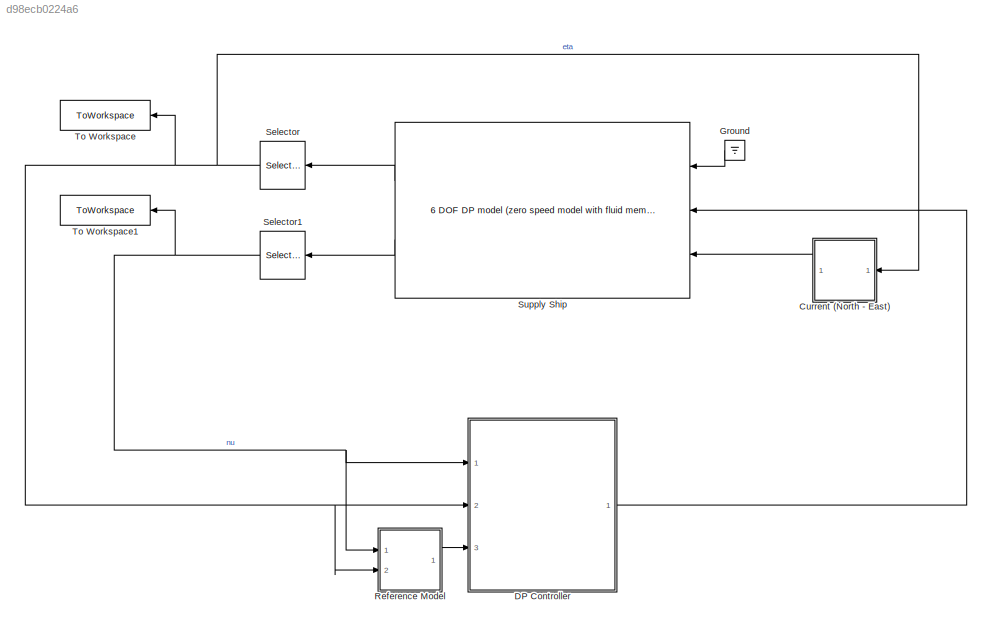
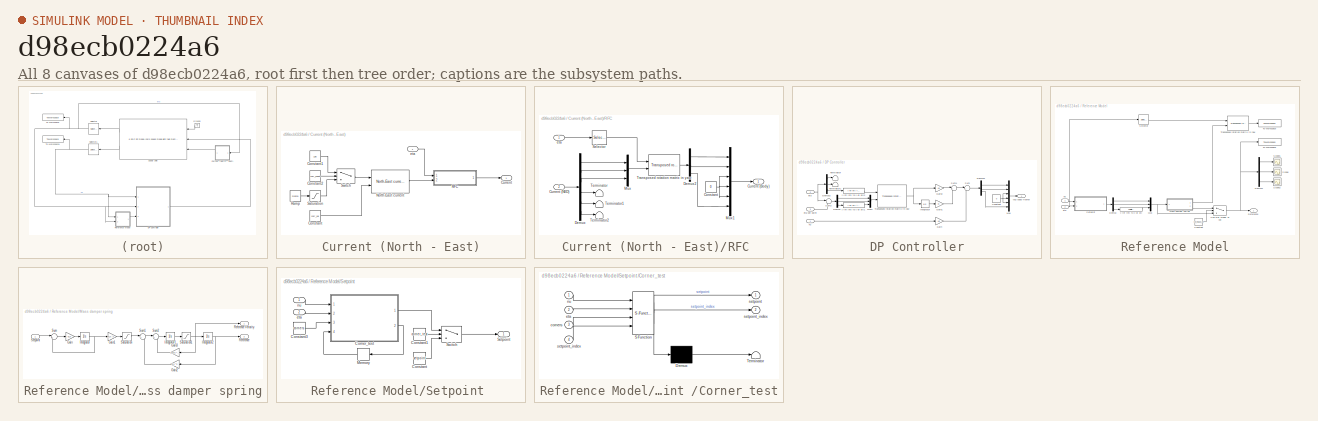
[diagram: thumbnail index - all 8 canvases of the model, root first then tree order]
MODEL slx_d98ecb0224a6
KIND model
CONFIG AbsTol = auto
CONFIG EnableMultiTasking = off
CONFIG FixedStep = auto
CONFIG MaxStep = auto
CONFIG MinStep = auto
CONFIG RelTol = 1e-3
CONFIG SampleTimeConstraint = Unconstrained
CONFIG Solver = VariableStepAuto
CONFIG SolverName = VariableStepAuto
CONFIG StartTime = 0.0
CONFIG StopTime = 1800
BLOCK [SubSystem] Current (North - East)
  Ports = [1, 1]
  RequestExecContextInheritance = off
BLOCK [Constant] Current (North - East)/Constant
  Value = curr_vel
BLOCK [Constant] Current (North - East)/Constant1
  Value = 135
BLOCK [Constant] Current (North - East)/Constant2
  Value = curr_const
BLOCK [Outport] Current (North - East)/Current
  IconDisplay = Port number
  VectorParamsAs1DForOutWhenUnconnected = off
BLOCK [Reference] Current (North - East)/North-East current  REF=marine_gnc/Environment/Current/North-East current  (lib defined in mdl_10d96c221ba8, mdl_45f1105420c6)
  Ports = [2, 1]
  SourceBlock = marine_gnc/Environment/Current/North-East current
  SourceProductName = MSS GNC
  SourceType = SubSystem
BLOCK [SubSystem] Current (North - East)/RFC 
  Ports = [2, 1]
  RequestExecContextInheritance = off
BLOCK [Constant] Current (North - East)/RFC /Constant
  Value = 0
BLOCK [Outport] Current (North - East)/RFC /Current (Body) 
  IconDisplay = Port number
BLOCK [Inport] Current (North - East)/RFC /Current (NED) 
  IconDisplay = Port number
  Port = 2
BLOCK [Demux] Current (North - East)/RFC /Demux
  DisplayOption = bar
  Outputs = 6
  Ports = [1, 6]
BLOCK [Demux] Current (North - East)/RFC /Demux2
  DisplayOption = bar
  Outputs = 3
  Ports = [1, 3]
BLOCK [Mux] Current (North - East)/RFC /Mux
  DisplayOption = bar
  Inputs = 3
  Ports = [3, 1]
BLOCK [Mux] Current (North - East)/RFC /Mux1
  DisplayOption = bar
  Inputs = 6
  Ports = [6, 1]
BLOCK [Selector] Current (North - East)/RFC /Selector
  IndexOptions = Index vector (dialog)
  Indices = [3]
  InputPortWidth = 3
  OutputSizes = 1
  Ports = [1, 1]
BLOCK [Terminator] Current (North - East)/RFC /Terminator
BLOCK [Terminator] Current (North - East)/RFC /Terminator1
BLOCK [Terminator] Current (North - East)/RFC /Terminator2
BLOCK [Reference] Current (North - East)/RFC /Transposed rotation matrix in yaw  REF=marine_gnc/Models/ Kinematics/Transposed rotation  (lib defined in mdl_10d96c221ba8, mdl_45f1105420c6)
 matrix in yaw
  Ports = [2, 1]
  SourceBlock = marine_gnc/Models/ Kinematics/Transposed rotation\n matrix in yaw
  SourceProductName = MSS GNC
BLOCK [Inport] Current (North - East)/RFC /eta
  IconDisplay = Port number
BLOCK [Reference] Current (North - East)/Ramp  REF=simulink/Sources/Ramp
  Ports = [0, 1]
  SourceBlock = simulink/Sources/Ramp
  SourceProductBaseCode = SL
  SourceProductName = Simulink
  SourceType = Ramp
BLOCK [Saturate] Current (North - East)/Saturation
  InputPortMap = u0
  Ports = [1, 1]
  UpperLimit = 270
BLOCK [Switch] Current (North - East)/Switch
  Criteria = u2 > Threshold
  InputSameDT = off
  SaturateOnIntegerOverflow = off
BLOCK [Inport] Current (North - East)/eta
  IconDisplay = Port number
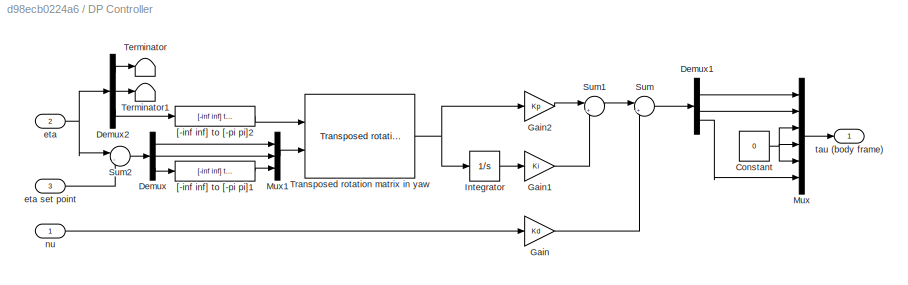
BLOCK [SubSystem] DP Controller
  Ports = [3, 1]
  RequestExecContextInheritance = off
BLOCK [Constant] DP Controller/Constant
  Value = 0
BLOCK [Demux] DP Controller/Demux
  DisplayOption = bar
  Outputs = 3
  Ports = [1, 3]
BLOCK [Demux] DP Controller/Demux1
  DisplayOption = bar
  Outputs = 3
  Ports = [1, 3]
BLOCK [Demux] DP Controller/Demux2
  DisplayOption = bar
  Outputs = 3
  Ports = [1, 3]
BLOCK [Gain] DP Controller/Gain
  Gain = Kd
  OutDataTypeStr = Inherit: Inherit via internal rule
  ParamDataTypeStr = Inherit: Inherit via internal rule
  SaturateOnIntegerOverflow = off
BLOCK [Gain] DP Controller/Gain1
  Gain = Ki
  OutDataTypeStr = Inherit: Inherit via internal rule
  ParamDataTypeStr = Inherit: Inherit via internal rule
  SaturateOnIntegerOverflow = off
BLOCK [Gain] DP Controller/Gain2
  Gain = Kp
  OutDataTypeStr = Inherit: Inherit via internal rule
  ParamDataTypeStr = Inherit: Inherit via internal rule
  SaturateOnIntegerOverflow = off
BLOCK [Integrator] DP Controller/Integrator
  Ports = [1, 1]
BLOCK [Mux] DP Controller/Mux
  DisplayOption = bar
  Inputs = 6
  Ports = [6, 1]
BLOCK [Mux] DP Controller/Mux1
  DisplayOption = bar
  Inputs = 3
  Ports = [3, 1]
BLOCK [Sum] DP Controller/Sum
  IconShape = round
  InputSameDT = off
  Inputs = |+-
  OutDataTypeStr = Inherit: Inherit via internal rule
  Ports = [2, 1]
  SaturateOnIntegerOverflow = off
BLOCK [Sum] DP Controller/Sum1
  IconShape = round
  InputSameDT = off
  Inputs = |++
  OutDataTypeStr = Inherit: Inherit via internal rule
  Ports = [2, 1]
  SaturateOnIntegerOverflow = off
BLOCK [Sum] DP Controller/Sum2
  IconShape = round
  InputSameDT = off
  Inputs = |-+
  OutDataTypeStr = Inherit: Inherit via internal rule
  Ports = [2, 1]
  SaturateOnIntegerOverflow = off
BLOCK [Terminator] DP Controller/Terminator
BLOCK [Terminator] DP Controller/Terminator1
BLOCK [Reference] DP Controller/Transposed rotation matrix in yaw  REF=marine_gnc/Models/ Kinematics/Transposed rotation  (lib defined in mdl_10d96c221ba8, mdl_45f1105420c6)
 matrix in yaw
  Ports = [2, 1]
  SourceBlock = marine_gnc/Models/ Kinematics/Transposed rotation\n matrix in yaw
  SourceProductName = MSS GNC
BLOCK [Reference] DP Controller/[-inf inf] to [-pi pi]1  REF=marine_gnc/Utilities/Math Operations/[-inf inf] to [-pi pi]  (lib defined in mdl_10d96c221ba8, mdl_45f1105420c6)
  Ports = [1, 1]
  SourceBlock = marine_gnc/Utilities/Math Operations/[-inf inf] to [-pi pi]
  SourceProductName = MSS GNC
  SourceType = [-inf inf] to [-pi pi]
BLOCK [Reference] DP Controller/[-inf inf] to [-pi pi]2  REF=marine_gnc/Utilities/Math Operations/[-inf inf] to [-pi pi]  (lib defined in mdl_10d96c221ba8, mdl_45f1105420c6)
  Ports = [1, 1]
  SourceBlock = marine_gnc/Utilities/Math Operations/[-inf inf] to [-pi pi]
  SourceProductName = MSS GNC
  SourceType = [-inf inf] to [-pi pi]
BLOCK [Inport] DP Controller/eta
  IconDisplay = Port number
  Port = 2
  PortDimensions = 3
BLOCK [Inport] DP Controller/eta set point
  IconDisplay = Port number
  Port = 3
BLOCK [Inport] DP Controller/nu
  IconDisplay = Port number
  PortDimensions = 3
BLOCK [Outport] DP Controller/tau (body frame)
  IconDisplay = Port number
  VectorParamsAs1DForOutWhenUnconnected = off
BLOCK [Ground] Ground
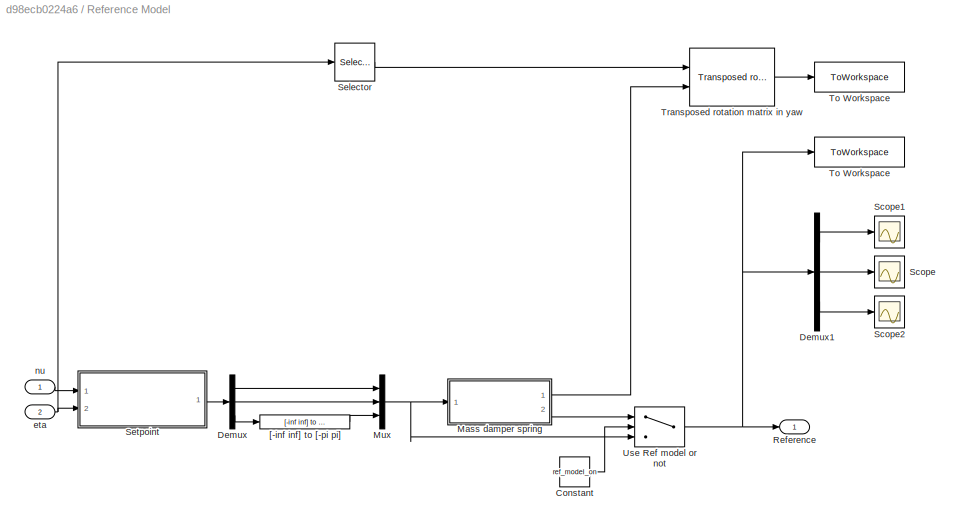
BLOCK [SubSystem] Reference Model
  Ports = [2, 1]
  RequestExecContextInheritance = off
BLOCK [Constant] Reference Model/Constant
  Value = ref_model_on
BLOCK [Demux] Reference Model/Demux
  DisplayOption = bar
  Outputs = 3
  Ports = [1, 3]
BLOCK [Demux] Reference Model/Demux1
  Commented = on
  DisplayOption = bar
  Outputs = 3
  Ports = [1, 3]
BLOCK [SubSystem] Reference Model/Mass damper spring
  Ports = [1, 2]
  RequestExecContextInheritance = off
BLOCK [Gain] Reference Model/Mass damper spring/Gain
  Gain = w_n
  OutDataTypeStr = Inherit: Inherit via internal rule
  ParamDataTypeStr = Inherit: Inherit via internal rule
  SaturateOnIntegerOverflow = off
BLOCK [Gain] Reference Model/Mass damper spring/Gain1
  Gain = w_n.^2
  OutDataTypeStr = Inherit: Inherit via internal rule
  ParamDataTypeStr = Inherit: Inherit via internal rule
  SaturateOnIntegerOverflow = off
BLOCK [Gain] Reference Model/Mass damper spring/Gain2
  Gain = w_n.^2
  OutDataTypeStr = Inherit: Inherit via internal rule
  ParamDataTypeStr = Inherit: Inherit via internal rule
  SaturateOnIntegerOverflow = off
BLOCK [Gain] Reference Model/Mass damper spring/Gain3
  Gain = 2*w_n.*zeta
  OutDataTypeStr = Inherit: Inherit via internal rule
  ParamDataTypeStr = Inherit: Inherit via internal rule
  SaturateOnIntegerOverflow = off
BLOCK [Integrator] Reference Model/Mass damper spring/Integrator
  Ports = [1, 1]
BLOCK [Integrator] Reference Model/Mass damper spring/Integrator1
  Ports = [1, 1]
BLOCK [Integrator] Reference Model/Mass damper spring/Integrator2
  Ports = [1, 1]
BLOCK [Outport] Reference Model/Mass damper spring/Reference 
  IconDisplay = Port number
  Port = 2
BLOCK [Outport] Reference Model/Mass damper spring/Reference Velocity 
  IconDisplay = Port number
BLOCK [Saturate] Reference Model/Mass damper spring/Saturation
  InputPortMap = u0
  LowerLimit = -25
  Ports = [1, 1]
  UpperLimit = 25
BLOCK [Saturate] Reference Model/Mass damper spring/Saturation1
  InputPortMap = u0
  LowerLimit = -25
  Ports = [1, 1]
  UpperLimit = 25
BLOCK [Inport] Reference Model/Mass damper spring/Setpoint 
  IconDisplay = Port number
BLOCK [Sum] Reference Model/Mass damper spring/Sum
  IconShape = round
  InputSameDT = off
  Inputs = |+-
  OutDataTypeStr = Inherit: Inherit via internal rule
  Ports = [2, 1]
  SaturateOnIntegerOverflow = off
BLOCK [Sum] Reference Model/Mass damper spring/Sum1
  IconShape = round
  InputSameDT = off
  Inputs = |+-
  OutDataTypeStr = Inherit: Inherit via internal rule
  Ports = [2, 1]
  SaturateOnIntegerOverflow = off
BLOCK [Sum] Reference Model/Mass damper spring/Sum2
  IconShape = round
  InputSameDT = off
  Inputs = |+-
  OutDataTypeStr = Inherit: Inherit via internal rule
  Ports = [2, 1]
  SaturateOnIntegerOverflow = off
BLOCK [Mux] Reference Model/Mux
  DisplayOption = bar
  Inputs = 3
  Ports = [3, 1]
BLOCK [Outport] Reference Model/Reference 
  IconDisplay = Port number
  VectorParamsAs1DForOutWhenUnconnected = off
BLOCK [Scope] Reference Model/Scope
  Commented = on
  Floating = off
  NumInputPorts = 1
  Ports = [1]
  ScopeSpecificationString = Simulink.scopes.TimeScopeBlockCfg('CurrentConfiguration', extmgr.ConfigurationSet(extmgr.Configuration('Core','General UI',true),extmgr.Configuration('Core','Source UI',true),extmgr.Configuration('Sources','WiredSimulink',true),extmgr.Configuration('Visuals','Time Domain',true,'SerializedDisplays',{struct('MinYLimReal','-56.25','MaxYLimReal','6.25','YLabelReal','','MinYLimMag','0.00000','MaxYLimMa...<+1314ch>
BLOCK [Scope] Reference Model/Scope1
  Commented = on
  Floating = off
  NumInputPorts = 1
  Ports = [1]
  ScopeSpecificationString = Simulink.scopes.TimeScopeBlockCfg('CurrentConfiguration', extmgr.ConfigurationSet(extmgr.Configuration('Core','General UI',true),extmgr.Configuration('Core','Source UI',true),extmgr.Configuration('Sources','WiredSimulink',true,'DataLoggingVariableName','ScopeData1'),extmgr.Configuration('Visuals','Time Domain',true,'SerializedDisplays',{struct('MinYLimReal','-6.25','MaxYLimReal','56.25','YLabelRea...<+1376ch>
BLOCK [Scope] Reference Model/Scope2
  Commented = on
  Floating = off
  NumInputPorts = 1
  Ports = [1]
  ScopeSpecificationString = Simulink.scopes.TimeScopeBlockCfg('CurrentConfiguration', extmgr.ConfigurationSet(extmgr.Configuration('Core','General UI',true),extmgr.Configuration('Core','Source UI',true),extmgr.Configuration('Sources','WiredSimulink',true,'DataLoggingVariableName','ScopeData2'),extmgr.Configuration('Visuals','Time Domain',true,'SerializedDisplays',{struct('MinYLimReal','-0.88357','MaxYLimReal','0.09817','YLab...<+1367ch>
BLOCK [Selector] Reference Model/Selector
  IndexOptions = Index vector (dialog)
  Indices = [3]
  InputPortWidth = 3
  OutputSizes = 1
  Ports = [1, 1]
BLOCK [SubSystem] Reference Model/Setpoint 
  Ports = [2, 1]
  RequestExecContextInheritance = off
BLOCK [Constant] Reference Model/Setpoint /Constant
  Value = setpoint
BLOCK [Constant] Reference Model/Setpoint /Constant1
  Value = corner_test
BLOCK [Constant] Reference Model/Setpoint /Constant3
  Value = corners
BLOCK [SubSystem] Reference Model/Setpoint /Corner_test
  ErrorFcn = Stateflow.Translate.translate
  PermitHierarchicalResolution = ExplicitOnly
  Ports = [4, 2]
  RequestExecContextInheritance = off
  SFBlockType = MATLAB Function
  TreatAsAtomicUnit = on
BLOCK [Demux] Reference Model/Setpoint /Corner_test/ Demux 
  Outputs = 1
  Ports = [1, 1]
BLOCK [S-Function] Reference Model/Setpoint /Corner_test/ SFunction 
  EnableBusSupport = on
  FunctionName = sf_sfun
  PortCounts = [4 3]
  Ports = [4, 3]
  SFcnIsStateOwnerBlock = off
  SFunctionDeploymentMode = off
  Tag = Stateflow S-Function 2
BLOCK [Terminator] Reference Model/Setpoint /Corner_test/ Terminator 
BLOCK [Inport] Reference Model/Setpoint /Corner_test/corners
  IconDisplay = Port number
  Port = 3
BLOCK [Inport] Reference Model/Setpoint /Corner_test/eta
  IconDisplay = Port number
  Port = 2
BLOCK [Inport] Reference Model/Setpoint /Corner_test/nu
  IconDisplay = Port number
BLOCK [Outport] Reference Model/Setpoint /Corner_test/setpoint
  IconDisplay = Port number
BLOCK [Outport] Reference Model/Setpoint /Corner_test/setpoint_index
  IconDisplay = Port number
  Port = 2
BLOCK [Inport] Reference Model/Setpoint /Corner_test/setpoint_index 
  IconDisplay = Port number
  Port = 4
BLOCK [Memory] Reference Model/Setpoint /Memory
  InitialCondition = 1
BLOCK [Outport] Reference Model/Setpoint /Setpoint 
  IconDisplay = Port number
BLOCK [Switch] Reference Model/Setpoint /Switch
  Criteria = u2 > Threshold
  InputSameDT = off
  SaturateOnIntegerOverflow = off
BLOCK [Inport] Reference Model/Setpoint /eta 
  IconDisplay = Port number
  Port = 2
BLOCK [Inport] Reference Model/Setpoint /nu
  IconDisplay = Port number
BLOCK [ToWorkspace] Reference Model/To Workspace
  FixptAsFi = on
  MaxDataPoints = inf
  Ports = [1]
  SampleTime = -1
  VariableName = ref_vel_out
BLOCK [ToWorkspace] Reference Model/To Workspace 
  FixptAsFi = on
  MaxDataPoints = inf
  Ports = [1]
  SampleTime = -1
  VariableName = ref_pos_out
BLOCK [Reference] Reference Model/Transposed rotation matrix in yaw  REF=marine_gnc/Models/ Kinematics/Transposed rotation  (lib defined in mdl_10d96c221ba8, mdl_45f1105420c6)
 matrix in yaw
  Ports = [2, 1]
  SourceBlock = marine_gnc/Models/ Kinematics/Transposed rotation\n matrix in yaw
  SourceProductName = MSS GNC
BLOCK [Switch] Reference Model/Use Ref model or not
  Criteria = u2 > Threshold
  InputSameDT = off
  SaturateOnIntegerOverflow = off
BLOCK [Reference] Reference Model/[-inf inf] to [-pi pi]  REF=marine_gnc/Utilities/Math Operations/[-inf inf] to [-pi pi]  (lib defined in mdl_10d96c221ba8, mdl_45f1105420c6)
  Ports = [1, 1]
  SourceBlock = marine_gnc/Utilities/Math Operations/[-inf inf] to [-pi pi]
  SourceProductName = MSS GNC
  SourceType = [-inf inf] to [-pi pi]
BLOCK [Inport] Reference Model/eta
  IconDisplay = Port number
  Port = 2
BLOCK [Inport] Reference Model/nu
  IconDisplay = Port number
BLOCK [Selector] Selector
  IndexOptions = Index vector (dialog)
  Indices = [1 2 6]
  InputPortWidth = 6
  OutputSizes = 1
  Ports = [1, 1]
BLOCK [Selector] Selector1
  IndexOptions = Index vector (dialog)
  Indices = [1 2 6]
  InputPortWidth = 6
  OutputSizes = 1
  Ports = [1, 1]
BLOCK [Reference] Supply Ship  REF=marine_hydro/Hydro Library/6 DOF DP model
 (zero speed model with fluid memory)
  Ports = [3, 2]
  SourceBlock = marine_hydro/Hydro Library/6 DOF DP model\n (zero speed model with fluid memory)
  SourceProductName = MSS Hydro
  SourceType = 6 DOF zero speed model
BLOCK [ToWorkspace] To Workspace
  FixptAsFi = on
  MaxDataPoints = inf
  Ports = [1]
  SampleTime = -1
  VariableName = eta_out
BLOCK [ToWorkspace] To Workspace1
  FixptAsFi = on
  MaxDataPoints = inf
  Ports = [1]
  SampleTime = -1
  VariableName = nu_out
LINE Current (North - East)/Constant1:1 -> Current (North - East)/Switch:1
LINE Current (North - East)/Constant2:1 -> Current (North - East)/Switch:2
LINE Current (North - East)/Constant:1 -> Current (North - East)/North-East current:2
LINE Current (North - East)/North-East current:1 -> Current (North - East)/RFC :2
NET Current (North - East)/RFC /Constant:1 -> Current (North - East)/RFC /Mux1:3, Current (North - East)/RFC /Mux1:4, Current (North - East)/RFC /Mux1:5
LINE Current (North - East)/RFC /Current (NED) :1 -> Current (North - East)/RFC /Demux:1
LINE Current (North - East)/RFC /Demux2:1 -> Current (North - East)/RFC /Mux1:1
LINE Current (North - East)/RFC /Demux2:2 -> Current (North - East)/RFC /Mux1:2
LINE Current (North - East)/RFC /Demux2:3 -> Current (North - East)/RFC /Mux1:6
LINE Current (North - East)/RFC /Demux:1 -> Current (North - East)/RFC /Mux:1
LINE Current (North - East)/RFC /Demux:2 -> Current (North - East)/RFC /Mux:2
LINE Current (North - East)/RFC /Demux:3 -> Current (North - East)/RFC /Mux:3
LINE Current (North - East)/RFC /Demux:4 -> Current (North - East)/RFC /Terminator:1
LINE Current (North - East)/RFC /Demux:5 -> Current (North - East)/RFC /Terminator1:1
LINE Current (North - East)/RFC /Demux:6 -> Current (North - East)/RFC /Terminator2:1
LINE Current (North - East)/RFC /Mux1:1 -> Current (North - East)/RFC /Current (Body) :1
LINE Current (North - East)/RFC /Mux:1 -> Current (North - East)/RFC /Transposed rotation matrix in yaw:2
LINE Current (North - East)/RFC /Selector:1 -> Current (North - East)/RFC /Transposed rotation matrix in yaw:1
LINE Current (North - East)/RFC /Transposed rotation matrix in yaw:1 -> Current (North - East)/RFC /Demux2:1
LINE Current (North - East)/RFC /eta:1 -> Current (North - East)/RFC /Selector:1
LINE Current (North - East)/RFC :1 -> Current (North - East)/Current:1
LINE Current (North - East)/Ramp:1 -> Current (North - East)/Saturation:1
LINE Current (North - East)/Saturation:1 -> Current (North - East)/Switch:3
LINE Current (North - East)/Switch:1 -> Current (North - East)/North-East current:1
LINE Current (North - East)/eta:1 -> Current (North - East)/RFC :1
LINE Current (North - East):1 -> Supply Ship:3
NET DP Controller/Constant:1 -> DP Controller/Mux:3, DP Controller/Mux:4, DP Controller/Mux:5
LINE DP Controller/Demux1:1 -> DP Controller/Mux:1
LINE DP Controller/Demux1:2 -> DP Controller/Mux:2
LINE DP Controller/Demux1:3 -> DP Controller/Mux:6
LINE DP Controller/Demux2:1 -> DP Controller/Terminator:1
LINE DP Controller/Demux2:2 -> DP Controller/Terminator1:1
LINE DP Controller/Demux2:3 -> DP Controller/[-inf inf] to [-pi pi]2:1
LINE DP Controller/Demux:1 -> DP Controller/Mux1:1
LINE DP Controller/Demux:2 -> DP Controller/Mux1:2
LINE DP Controller/Demux:3 -> DP Controller/[-inf inf] to [-pi pi]1:1
LINE DP Controller/Gain1:1 -> DP Controller/Sum1:2
LINE DP Controller/Gain2:1 -> DP Controller/Sum1:1
LINE DP Controller/Gain:1 -> DP Controller/Sum:2
LINE DP Controller/Integrator:1 -> DP Controller/Gain1:1
LINE DP Controller/Mux1:1 -> DP Controller/Transposed rotation matrix in yaw:2
LINE DP Controller/Mux:1 -> DP Controller/tau (body frame):1
LINE DP Controller/Sum1:1 -> DP Controller/Sum:1
LINE DP Controller/Sum2:1 -> DP Controller/Demux:1
LINE DP Controller/Sum:1 -> DP Controller/Demux1:1
NET DP Controller/Transposed rotation matrix in yaw:1 -> DP Controller/Gain2:1, DP Controller/Integrator:1
LINE DP Controller/[-inf inf] to [-pi pi]1:1 -> DP Controller/Mux1:3
LINE DP Controller/[-inf inf] to [-pi pi]2:1 -> DP Controller/Transposed rotation matrix in yaw:1
LINE DP Controller/eta set point:1 -> DP Controller/Sum2:2
NET DP Controller/eta:1 -> DP Controller/Demux2:1, DP Controller/Sum2:1
LINE DP Controller/nu:1 -> DP Controller/Gain:1
LINE DP Controller:1 -> Supply Ship:2
LINE Ground:1 -> Supply Ship:1
LINE Reference Model/Constant:1 -> Reference Model/Use Ref model or not:2
LINE Reference Model/Demux1:1 -> Reference Model/Scope1:1
LINE Reference Model/Demux1:2 -> Reference Model/Scope:1
LINE Reference Model/Demux1:3 -> Reference Model/Scope2:1
LINE Reference Model/Demux:1 -> Reference Model/Mux:1
LINE Reference Model/Demux:2 -> Reference Model/Mux:2
LINE Reference Model/Demux:3 -> Reference Model/[-inf inf] to [-pi pi]:1
LINE Reference Model/Mass damper spring/Gain1:1 -> Reference Model/Mass damper spring/Saturation:1
LINE Reference Model/Mass damper spring/Gain2:1 -> Reference Model/Mass damper spring/Sum1:2
LINE Reference Model/Mass damper spring/Gain3:1 -> Reference Model/Mass damper spring/Sum2:2
LINE Reference Model/Mass damper spring/Gain:1 -> Reference Model/Mass damper spring/Integrator:1
LINE Reference Model/Mass damper spring/Integrator1:1 -> Reference Model/Mass damper spring/Saturation1:1
NET Reference Model/Mass damper spring/Integrator2:1 -> Reference Model/Mass damper spring/Gain2:1, Reference Model/Mass damper spring/Reference :1
NET Reference Model/Mass damper spring/Integrator:1 -> Reference Model/Mass damper spring/Gain1:1, Reference Model/Mass damper spring/Sum:2
NET Reference Model/Mass damper spring/Saturation1:1 -> Reference Model/Mass damper spring/Gain3:1, Reference Model/Mass damper spring/Integrator2:1, Reference Model/Mass damper spring/Reference Velocity :1
LINE Reference Model/Mass damper spring/Saturation:1 -> Reference Model/Mass damper spring/Sum1:1
LINE Reference Model/Mass damper spring/Setpoint :1 -> Reference Model/Mass damper spring/Sum:1
LINE Reference Model/Mass damper spring/Sum1:1 -> Reference Model/Mass damper spring/Sum2:1
LINE Reference Model/Mass damper spring/Sum2:1 -> Reference Model/Mass damper spring/Integrator1:1
LINE Reference Model/Mass damper spring/Sum:1 -> Reference Model/Mass damper spring/Gain:1
LINE Reference Model/Mass damper spring:1 -> Reference Model/Transposed rotation matrix in yaw:2
LINE Reference Model/Mass damper spring:2 -> Reference Model/Use Ref model or not:1
NET Reference Model/Mux:1 -> Reference Model/Mass damper spring:1, Reference Model/Use Ref model or not:3
LINE Reference Model/Selector:1 -> Reference Model/Transposed rotation matrix in yaw:1
LINE Reference Model/Setpoint /Constant1:1 -> Reference Model/Setpoint /Switch:2
LINE Reference Model/Setpoint /Constant3:1 -> Reference Model/Setpoint /Corner_test:3
LINE Reference Model/Setpoint /Constant:1 -> Reference Model/Setpoint /Switch:3
LINE Reference Model/Setpoint /Corner_test:1 -> Reference Model/Setpoint /Switch:1
LINE Reference Model/Setpoint /Corner_test:2 -> Reference Model/Setpoint /Memory:1
LINE Reference Model/Setpoint /Memory:1 -> Reference Model/Setpoint /Corner_test:4
LINE Reference Model/Setpoint /Switch:1 -> Reference Model/Setpoint /Setpoint :1
LINE Reference Model/Setpoint /eta :1 -> Reference Model/Setpoint /Corner_test:2
LINE Reference Model/Setpoint /nu:1 -> Reference Model/Setpoint /Corner_test:1
LINE Reference Model/Setpoint :1 -> Reference Model/Demux:1
LINE Reference Model/Transposed rotation matrix in yaw:1 -> Reference Model/To Workspace:1
NET Reference Model/Use Ref model or not:1 -> Reference Model/Demux1:1, Reference Model/Reference :1, Reference Model/To Workspace :1
LINE Reference Model/[-inf inf] to [-pi pi]:1 -> Reference Model/Mux:3
NET Reference Model/eta:1 -> Reference Model/Selector:1, Reference Model/Setpoint :2
LINE Reference Model/nu:1 -> Reference Model/Setpoint :1
LINE Reference Model:1 -> DP Controller:3
NET Selector1:1 -> DP Controller:1, Reference Model:1, To Workspace1:1
NET Selector:1 -> Current (North - East):1, DP Controller:2, Reference Model:2, To Workspace:1
LINE Supply Ship:1 -> Selector:1
LINE Supply Ship:2 -> Selector1:1
note: NET lines group one-source signal fan-out (src -> all destinations, sorted); 1:1 wires keep LINE
CHART Reference Model/Setpoint
/Corner_test states=1 transitions=1
  STATE_LABEL 'eML_blk_kernel()'
  STATE_LABEL "SCRIPT:\nfunction [setpoint,setpoint_index] = fcn(nu, eta, corners, setpoint_index)\n\nsetpoint=corners(setpoint_index,:);\n\neta_tol = [0.5,0.5,pi/180];\nnu_tol = [0.05,0.05,0.01];\n\nerr = [abs(setpoint-eta');abs(nu')];\ntest = err > [eta_tol;nu_tol];\n\nif (sum(sum(test)) == 0)\n    setpoint_index = mod(setpoint_index,6)+1;\n    % NB: The corner test will loop once finished.\nend\n\n"
